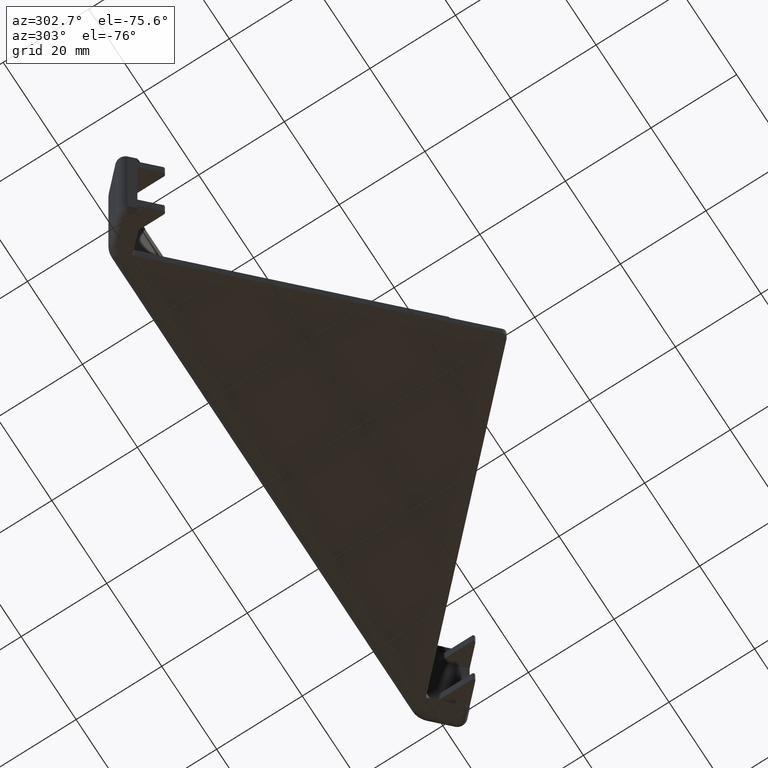
[diagram: clean part render]
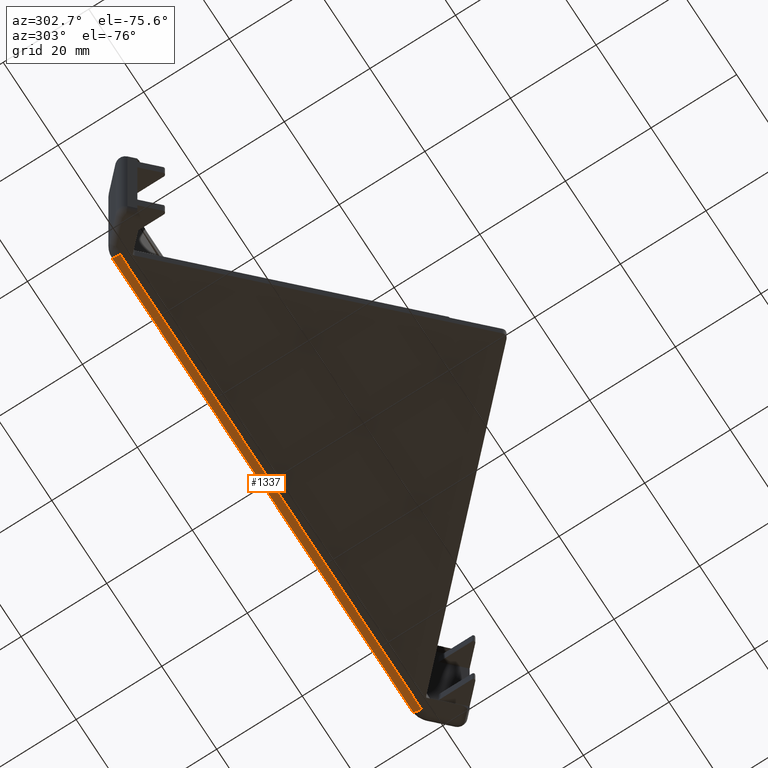
[diagram: same view with one face highlighted and labeled with its STEP entity id]
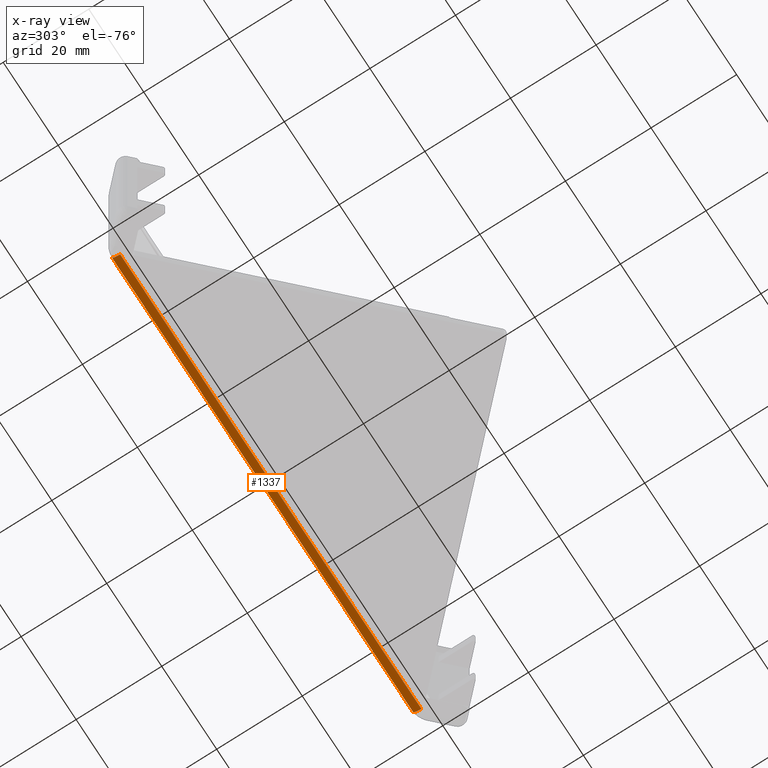
[diagram: x-ray of the same camera — body ghosted, the highlighted face saturated]
A machine part, auxiliary view. The second image highlights one B-rep face of the part: STEP entity #1337.
The next image is the same camera in x-ray: the body ghosted, the highlighted face saturated — about 0% of this face is hidden behind the body in this view.
In plain terms, the highlighted cylindrical surface (edge-blend (fillet) strip) has radius 2 mm, axis along (-1, 0, 0).
Its self-contained STEP definition (entity closure, byte-faithful):
#87=LINE('',#1961,#226);
#146=LINE('',#2099,#285);
#226=VECTOR('',#1555,1000.);
#285=VECTOR('',#1664,1000.);
#357=CYLINDRICAL_SURFACE('',#1474,2.);
#426=FACE_OUTER_BOUND('',#501,.T.);
#501=EDGE_LOOP('',(#1195,#1196,#1197,#1198));
#556=CIRCLE('',#1475,2.);
#557=CIRCLE('',#1476,2.);
#596=VERTEX_POINT('',#1958);
#597=VERTEX_POINT('',#1960);
#650=VERTEX_POINT('',#2097);
#651=VERTEX_POINT('',#2098);
#721=EDGE_CURVE('',#596,#597,#87,.T.);
#792=EDGE_CURVE('',#650,#651,#146,.T.);
#873=EDGE_CURVE('',#650,#597,#556,.T.);
#874=EDGE_CURVE('',#596,#651,#557,.T.);
#1195=ORIENTED_EDGE('',*,*,#792,.F.);
#1196=ORIENTED_EDGE('',*,*,#873,.T.);
#1197=ORIENTED_EDGE('',*,*,#721,.F.);
#1198=ORIENTED_EDGE('',*,*,#874,.T.);
#1337=ADVANCED_FACE('',(#426),#357,.T.);
#1474=AXIS2_PLACEMENT_3D('',#2258,#1840,#1841);
#1475=AXIS2_PLACEMENT_3D('',#2259,#1842,#1843);
#1476=AXIS2_PLACEMENT_3D('',#2260,#1844,#1845);
#1555=DIRECTION('',(1.,-2.09257357653368E-16,0.));
#1664=DIRECTION('',(-1.,2.09257357653368E-16,0.));
#1840=DIRECTION('center_axis',(-1.,2.09257357653368E-16,0.));
#1841=DIRECTION('ref_axis',(-2.09257357653368E-16,-1.,0.));
#1842=DIRECTION('center_axis',(-1.,0.,0.));
#1843=DIRECTION('ref_axis',(0.,0.,1.));
#1844=DIRECTION('center_axis',(1.,0.,0.));
#1845=DIRECTION('ref_axis',(0.,0.,-1.));
#1958=CARTESIAN_POINT('',(-54.3000000000001,1.9999999999999,-21.5));
#1960=CARTESIAN_POINT('',(55.3000000000003,1.99999999999988,-21.5));
#1961=CARTESIAN_POINT('',(56.9568542494917,1.99999999999988,-21.5));
#2097=CARTESIAN_POINT('',(55.3000000000003,3.99999999999988,-19.5));
#2098=CARTESIAN_POINT('',(-54.3000000000001,3.9999999999999,-19.5));
#2099=CARTESIAN_POINT('',(-55.9568542494925,3.9999999999999,-19.5));
#2258=CARTESIAN_POINT('Origin',(-60.3,1.9999999999999,-19.5));
#2259=CARTESIAN_POINT('Origin',(55.3000000000003,1.99999999999988,-19.5));
#2260=CARTESIAN_POINT('Origin',(-54.3000000000001,1.9999999999999,-19.5));